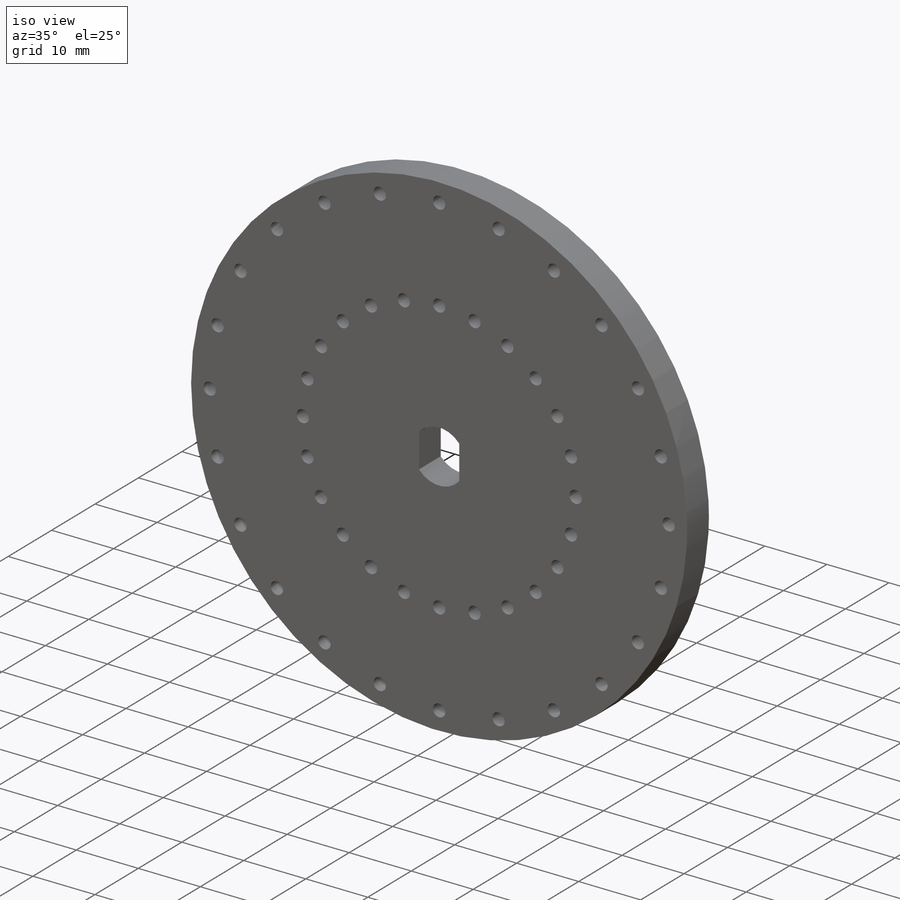
[diagram: iso view]
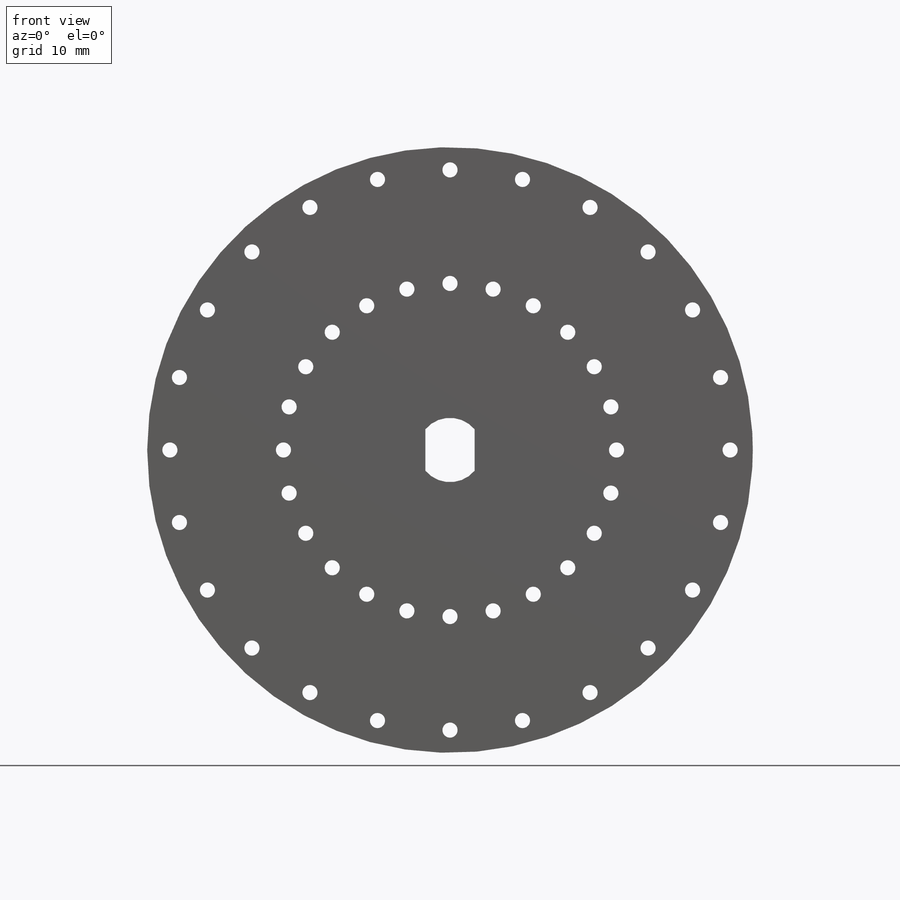
[diagram: front view]
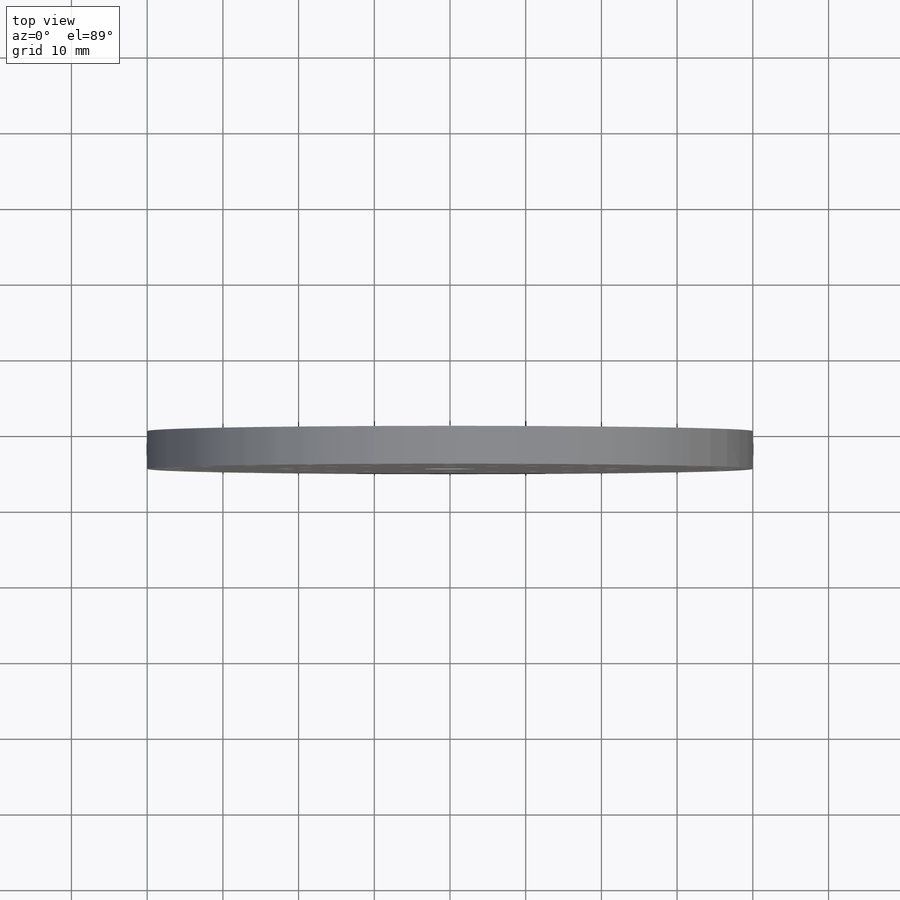
[diagram: top view]
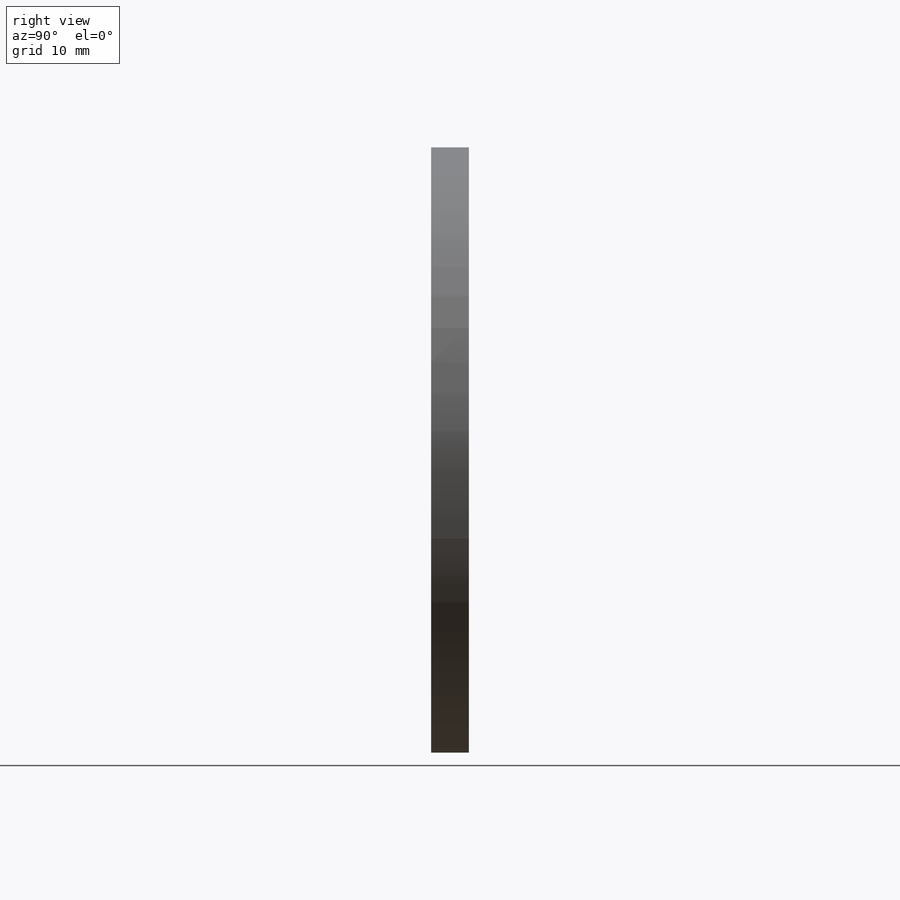
[diagram: right view]
SOLIDWORKS PART (.sldprt)
format: sldprt  version: not decoded by parser v0  size: 445,440 bytes
history: native  units: mm
features: sketch x3, cut_extrude x2, material x1, extrude x1 (+11 scaffold rows collapsed)
feature tree (18):
  scaffold x11  (default folders/planes/origin — collapsed)
  material  "Pine"
  sketch  "Sketch1"  dims[D1=80.0mm D2=2.0mm D3=3.0mm D4=12.0mm D5=10.0mm]
  sketch  "Sketch2"  dims[D1=2.0mm D2=3.0mm D3=15.0mm D4=24.0]
  sketch  "Sketch5"  dims[D1=8.5mm D2=6.5mm]
  extrude  "Boss-Extrude1"  Depth=5mm
  cut_extrude  "Cut-Extrude1"  Depth=5mm
  cut_extrude  "Cut-Extrude2"  Depth=5mm
decode coverage: 6 of 6 modeling features carry decoded parameters
note: suppression state not decoded; provenance and decode notes live in map.json
